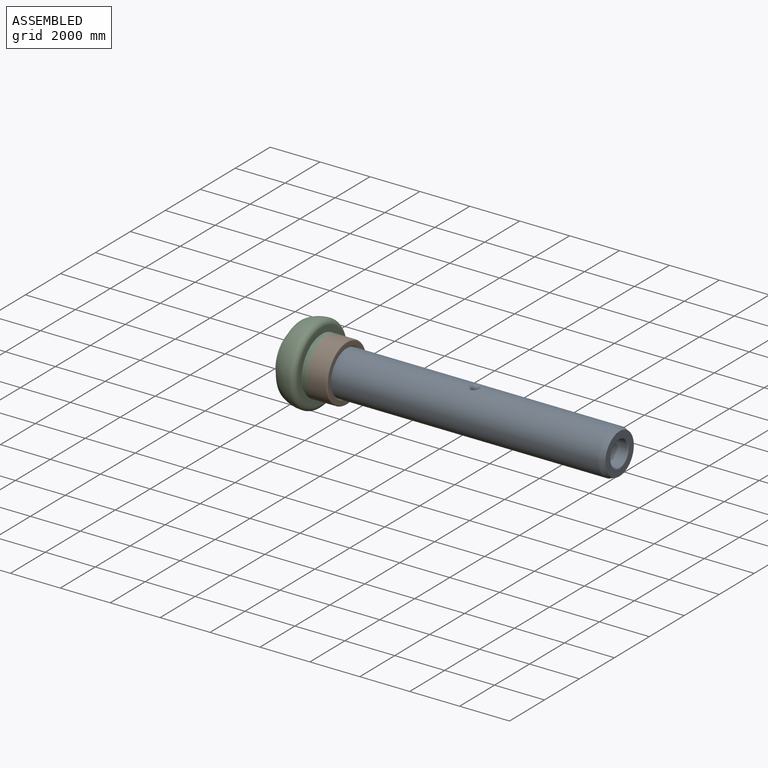
[diagram: assembled view]
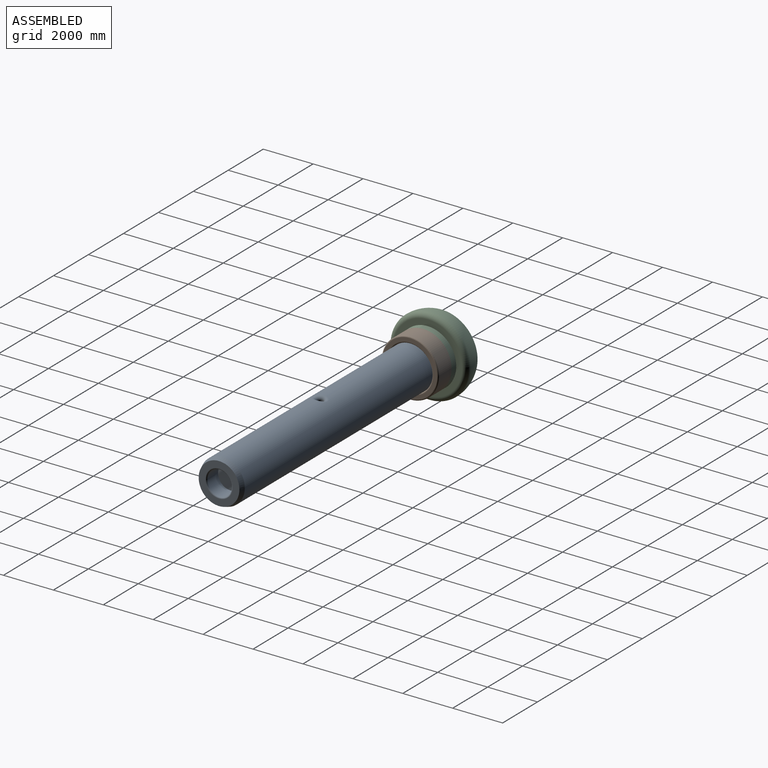
[diagram: assembled view, second angle]
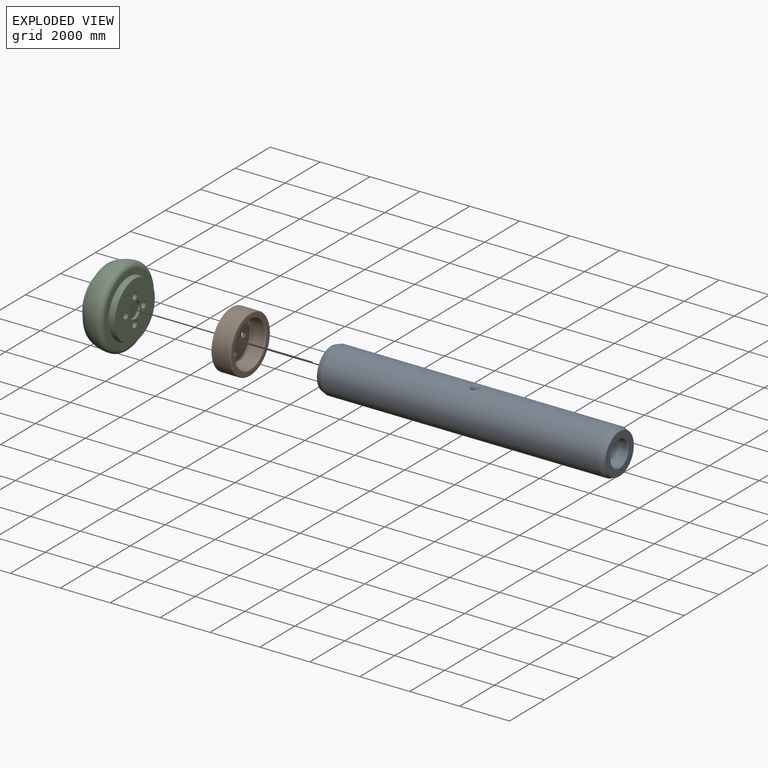
[diagram: exploded view]
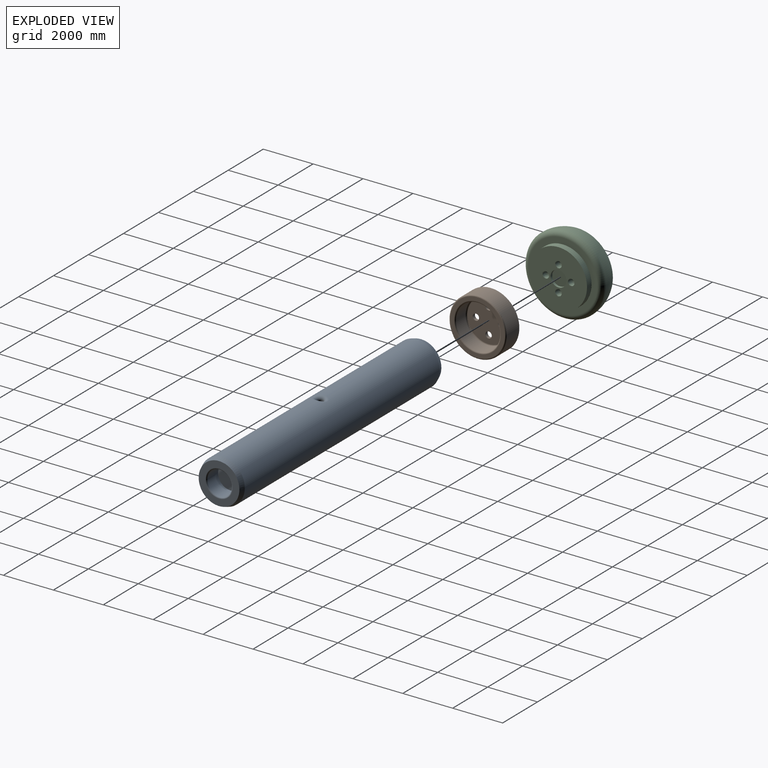
[diagram: exploded view, second angle]
ASSEMBLY  parts=3 mates=3
PART A: 18 faces, bbox 11557x1778x1796 mm
  f0: plane 1630.08x1630.08mm, normal (-1,0,0), area 1150033.5mm2, adj f7,f8
  f1: plane 1630.08x1630.08mm, normal (1,0,0), area 1150033.5mm2, adj f13,f14
  f2: cylinder r=889mm len=11150.6mm, axis (1,0,0), area 61804528mm2, adj f7,f13,f16,f17
  f3: cylinder r=495.3mm len=990.6mm, axis (-1,0,0), area 1225218.7mm2, adj f4,f8
  f4: plane 1003.3x1003.3mm, normal (1,0,0), area 19888.3mm2, adj f3,f5
  f5: cylinder r=501.65mm len=1003.3mm, axis (1,0,0), area 680508.1mm2, adj f4,f6
  f6: plane 1003.3x1003.3mm, normal (-1,0,0), area 790590.3mm2, adj f5
  f7: cone r=889mm half-angle=20deg, axis (1,0,0), area 1157624.9mm2, adj f0,f2
  f8: torus R=546.1mm, axis (1,0,0), area 257586.7mm2, adj f0,f3
  f9: cylinder r=495.3mm len=990.6mm, axis (1,0,0), area 1225218.7mm2, adj f11,f14
  f10: cylinder r=501.65mm len=1003.3mm, axis (-1,0,0), area 680508.1mm2, adj f11,f12
  f11: plane 1003.3x1003.3mm, normal (-1,0,0), area 19888.3mm2, adj f9,f10
  f12: plane 1003.3x1003.3mm, normal (1,0,0), area 790590.3mm2, adj f10
  f13: cone r=815.04mm half-angle=20deg, axis (-1,0,0), area 1157624.9mm2, adj f1,f2
  f14: torus R=546.1mm, axis (-1,0,0), area 257586.7mm2, adj f1,f9
  f15: cylinder r=127mm len=1524mm, axis (0,0,1), area 1181574.6mm2, adj f16,f17
  f16: bspline ~592.72x508.05mm, area 253839.7mm2, adj f2,f15
  f17: bspline ~592.72x508.05mm, area 253839.7mm2, adj f2,f15
PART B: 12 faces, bbox 2474.3x762x2474.3 mm
  f0: cylinder r=127mm len=254mm, axis (0,1,0), area 101341.5mm2, adj f5,f7
  f1: cylinder r=127mm len=254mm, axis (0,1,0), area 101341.5mm2, adj f5,f7
  f2: cylinder r=127mm len=254mm, axis (0,1,0), area 101341.5mm2, adj f5,f7
  f3: cylinder r=1143mm len=2286mm, axis (0,1,0), area 5107611.4mm2, adj f5,f11
  f4: plane 2184.4x2184.4mm, normal (0,-1,0), area 972878.4mm2, adj f9,f11
  f5: plane 2286x2286mm, normal (0,1,0), area 3901647.6mm2, adj f0,f1,f2,f3,f8
  f6: cylinder r=889mm len=1778mm, axis (0,-1,0), area 2979440mm2, adj f9,f10
  f7: plane 1676.4x1676.4mm, normal (0,-1,0), area 2004534.8mm2, adj f0,f1,f2,f8,f10
  f8: cylinder r=127mm len=254mm, axis (0,1,0), area 101341.5mm2, adj f5,f7
  f9: torus R=939.8mm, axis (0,-1,0), area 454978.4mm2, adj f4,f6
  f10: torus R=838.2mm, axis (0,-1,0), area 436467.9mm2, adj f6,f7
  f11: torus R=1092.2mm, axis (0,-1,0), area 563817.4mm2, adj f3,f4
PART C: 39 faces, bbox 1397x3436.6x3436.6 mm
  f0: cylinder r=127mm len=254mm, axis (1,0,0), area 157079.3mm2, adj f1,f3
  f1: plane 266.7x266.7mm, normal (1,0,0), area 5193.8mm2, adj f0,f2
  f2: cylinder r=133.35mm len=266.7mm, axis (1,0,0), area 5320.4mm2, adj f1,f14
  f3: cone r=0mm half-angle=59deg, axis (1,0,0), area 59114.2mm2, adj f0
  f4: cylinder r=127mm len=254mm, axis (1,0,0), area 157079.3mm2, adj f5,f7
  f5: plane 266.7x266.7mm, normal (1,0,0), area 5193.8mm2, adj f4,f6
  f6: cylinder r=133.35mm len=266.7mm, axis (1,0,0), area 5320.4mm2, adj f5,f14
  f7: cone r=0mm half-angle=59deg, axis (1,0,0), area 59114.2mm2, adj f4
  f8: cylinder r=127mm len=254mm, axis (1,0,0), area 157079.3mm2, adj f9,f11
  f9: plane 266.7x266.7mm, normal (1,0,0), area 5193.8mm2, adj f8,f10
  f10: cylinder r=133.35mm len=266.7mm, axis (1,0,0), area 5320.4mm2, adj f9,f14
  f11: cone r=0mm half-angle=59deg, axis (1,0,0), area 59114.2mm2, adj f8
  f12: cylinder r=1016mm len=2032mm, axis (-1,0,0), area 1440166.4mm2, adj f13,f22
  f13: plane 2032x2032mm, normal (-1,0,0), area 2889752.8mm2, adj f12,f25,f35,f37
  f14: plane 2286x2286mm, normal (1,0,0), area 3564180.4mm2, adj f2,f6,f10,f15,f23,f29
  f15: cylinder r=1143mm len=2286mm, axis (-1,0,0), area 1802601.9mm2, adj f14,f21
  f16: plane 2768.6x2768.6mm, normal (1,0,0), area 1894287.7mm2, adj f17,f21
  f17: torus R=1384.3mm, axis (-1,0,0), area 3035652.9mm2, adj f16,f18
  f18: torus R=317.5mm, axis (-1,0,0), area 6083224.1mm2, adj f17,f19
  f19: torus R=1255.58mm, axis (-1,0,0), area 1858344.2mm2, adj f18,f20
  f20: plane 2511.16x2511.16mm, normal (-1,0,0), area 1690571.7mm2, adj f19,f22
  f21: torus R=1146mm, axis (1,0,0), area 33875.2mm2, adj f15,f16
  f22: torus R=1019mm, axis (-1,0,0), area 30114.8mm2, adj f12,f20
  f23: cylinder r=317.5mm len=635mm, axis (1,0,0), area 202683mm2, adj f14,f24
  f24: plane 635x635mm, normal (1,0,0), area 316692.2mm2, adj f23
  f25: cylinder r=317.5mm len=635mm, axis (-1,0,0), area 202683mm2, adj f13,f26
  f26: plane 635x635mm, normal (-1,0,0), area 178741.1mm2, adj f25,f33
  f27: cylinder r=127mm len=254mm, axis (1,0,0), area 157079.3mm2, adj f28,f30
  f28: plane 266.7x266.7mm, normal (1,0,0), area 5193.8mm2, adj f27,f29
  f29: cylinder r=133.35mm len=266.7mm, axis (1,0,0), area 5320.4mm2, adj f14,f28
  f30: cone r=0mm half-angle=59deg, axis (1,0,0), area 59114.2mm2, adj f27
  f31: cylinder r=203.2mm len=406.4mm, axis (-1,0,0), area 316185.5mm2, adj f32,f34
  f32: plane 419.1x419.1mm, normal (-1,0,0), area 8234mm2, adj f31,f33
  f33: cylinder r=209.55mm len=419.1mm, axis (-1,0,0), area 8360.7mm2, adj f26,f32
  f34: cone r=0mm half-angle=59deg, axis (-1,0,0), area 151332.3mm2, adj f31
  f35: cylinder r=76.2mm len=152.4mm, axis (-1,0,0), area 72965.9mm2, adj f13,f36
  f36: plane 152.4x152.4mm, normal (-1,0,0), area 18241.5mm2, adj f35
  f37: cylinder r=76.2mm len=152.4mm, axis (-1,0,0), area 72965.9mm2, adj f13,f38
  f38: plane 152.4x152.4mm, normal (-1,0,0), area 18241.5mm2, adj f37
PLACE A t=(-4294.47,1921.73,-3892.88)mm
PLACE B rot(axis=(-0.58,0.58,0.58),120deg) t=(-4036.3,1921.73,-3892.88)mm
PLACE C t=(-5814.3,1921.73,-3892.88)mm
MATE planar B.f3 <-> C.f17  axis (-1,0,0) through (-4417.3,1921.73,-3892.88)mm
MATE cylindrical A.f2 <-> C.f21  axis (1,0,0) through (-4192.87,1921.73,-3892.88)mm
MATE cylindrical B.f6 <-> C.f23  axis (1,0,0) through (-3972.8,1921.73,-3892.88)mm
